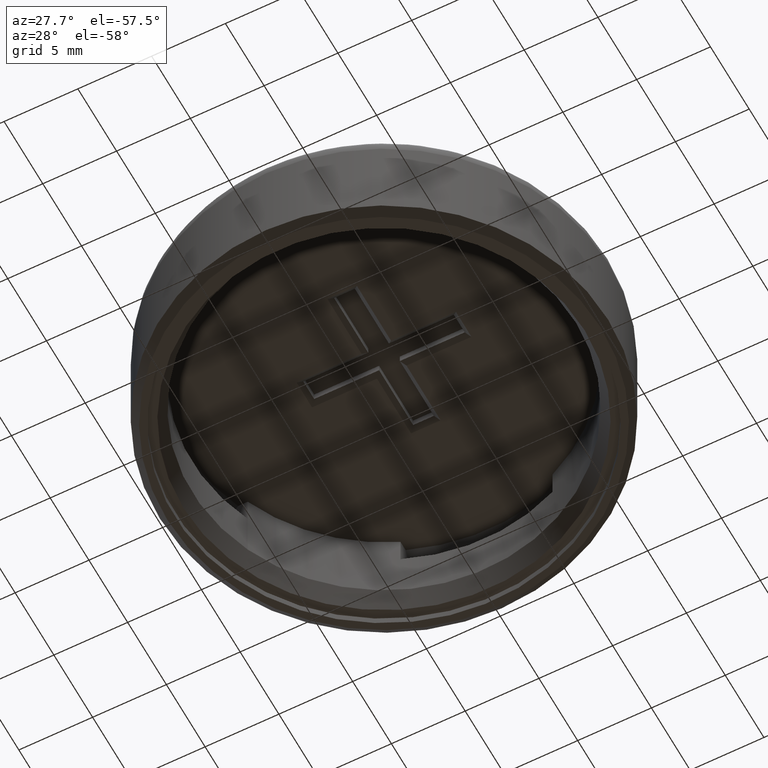
[diagram: clean part render]
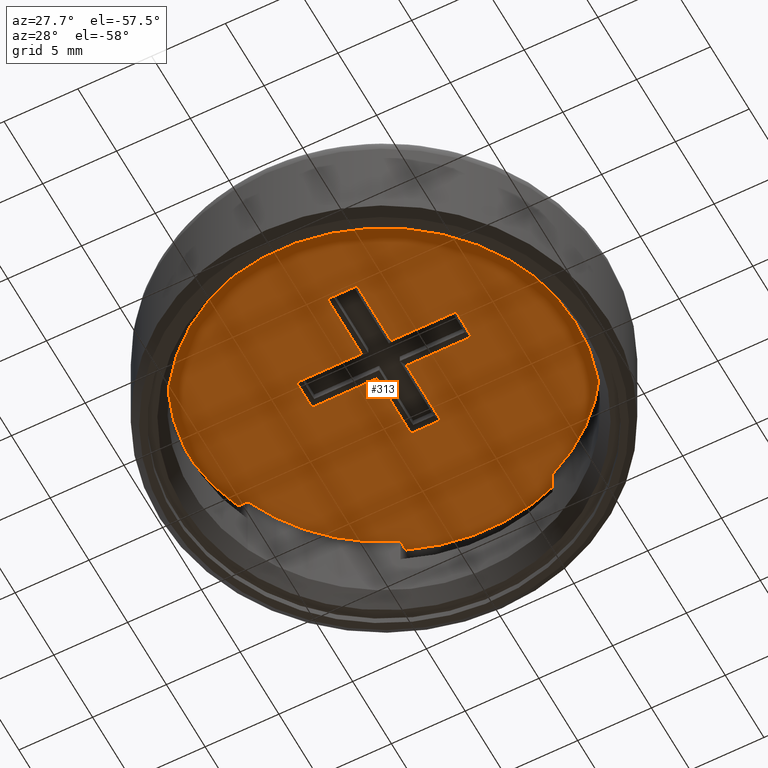
[diagram: same view with one face highlighted and labeled with its STEP entity id]
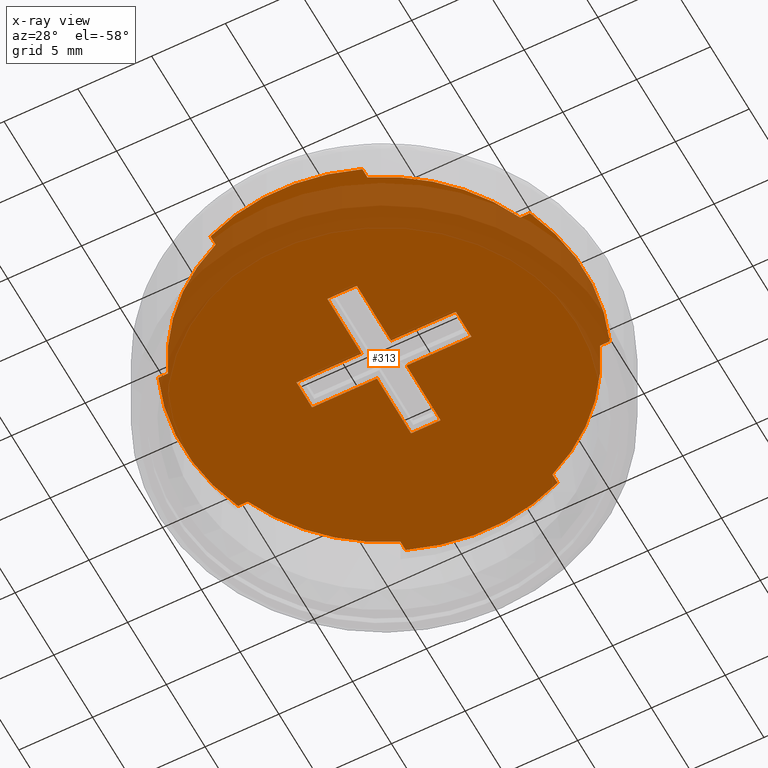
[diagram: x-ray of the same camera — body ghosted, the highlighted face saturated]
A machine part, auxiliary view. The second image highlights one B-rep face of the part: STEP entity #313.
The next image is the same camera in x-ray: the body ghosted, the highlighted face saturated — about 18% of this face is hidden behind the body in this view.
In plain terms, the highlighted planar face has unit normal (0, 0, -1).
Its self-contained STEP definition (entity closure, byte-faithful):
#52=PLANE('',#1013);
#95=FACE_BOUND('',#426,.T.);
#96=FACE_BOUND('',#427,.T.);
#115=LINE('',#1402,#207);
#119=LINE('',#1411,#211);
#122=LINE('',#1417,#214);
#124=LINE('',#1421,#216);
#128=LINE('',#1429,#220);
#131=LINE('',#1435,#223);
#133=LINE('',#1439,#225);
#137=LINE('',#1447,#229);
#140=LINE('',#1453,#232);
#142=LINE('',#1457,#234);
#146=LINE('',#1464,#238);
#147=LINE('',#1466,#239);
#162=LINE('',#1495,#254);
#163=LINE('',#1496,#255);
#164=LINE('',#1500,#256);
#165=LINE('',#1501,#257);
#166=LINE('',#1502,#258);
#167=LINE('',#1503,#259);
#168=LINE('',#1507,#260);
#169=LINE('',#1508,#261);
#207=VECTOR('',#1124,1.);
#211=VECTOR('',#1130,1.);
#214=VECTOR('',#1135,1.);
#216=VECTOR('',#1139,1.);
#220=VECTOR('',#1145,1.);
#223=VECTOR('',#1150,1.);
#225=VECTOR('',#1154,1.);
#229=VECTOR('',#1160,1.);
#232=VECTOR('',#1165,1.);
#234=VECTOR('',#1169,1.);
#238=VECTOR('',#1175,1.);
#239=VECTOR('',#1178,1.);
#254=VECTOR('',#1207,1.);
#255=VECTOR('',#1208,1.);
#256=VECTOR('',#1211,1.);
#257=VECTOR('',#1212,1.);
#258=VECTOR('',#1213,1.);
#259=VECTOR('',#1214,1.);
#260=VECTOR('',#1217,1.);
#261=VECTOR('',#1218,1.);
#313=ADVANCED_FACE('',(#95,#96),#52,.T.);
#426=EDGE_LOOP('',(#579,#580,#581,#582,#583,#584,#585,#586,#587,#588,#589,
#590,#591,#592,#593,#594));
#427=EDGE_LOOP('',(#595,#596,#597,#598,#599,#600,#601,#602,#603,#604,#605,
#606));
#579=ORIENTED_EDGE('',*,*,#891,.T.);
#580=ORIENTED_EDGE('',*,*,#822,.T.);
#581=ORIENTED_EDGE('',*,*,#892,.T.);
#582=ORIENTED_EDGE('',*,*,#893,.T.);
#583=ORIENTED_EDGE('',*,*,#894,.T.);
#584=ORIENTED_EDGE('',*,*,#818,.T.);
#585=ORIENTED_EDGE('',*,*,#895,.T.);
#586=ORIENTED_EDGE('',*,*,#834,.T.);
#587=ORIENTED_EDGE('',*,*,#896,.T.);
#588=ORIENTED_EDGE('',*,*,#814,.T.);
#589=ORIENTED_EDGE('',*,*,#897,.T.);
#590=ORIENTED_EDGE('',*,*,#898,.T.);
#591=ORIENTED_EDGE('',*,*,#899,.T.);
#592=ORIENTED_EDGE('',*,*,#810,.T.);
#593=ORIENTED_EDGE('',*,*,#900,.T.);
#594=ORIENTED_EDGE('',*,*,#804,.T.);
#595=ORIENTED_EDGE('',*,*,#848,.F.);
#596=ORIENTED_EDGE('',*,*,#875,.F.);
#597=ORIENTED_EDGE('',*,*,#871,.F.);
#598=ORIENTED_EDGE('',*,*,#869,.F.);
#599=ORIENTED_EDGE('',*,*,#866,.F.);
#600=ORIENTED_EDGE('',*,*,#862,.F.);
#601=ORIENTED_EDGE('',*,*,#860,.F.);
#602=ORIENTED_EDGE('',*,*,#857,.F.);
#603=ORIENTED_EDGE('',*,*,#853,.F.);
#604=ORIENTED_EDGE('',*,*,#851,.F.);
#605=ORIENTED_EDGE('',*,*,#844,.F.);
#606=ORIENTED_EDGE('',*,*,#876,.F.);
#720=VERTEX_POINT('',#1306);
#721=VERTEX_POINT('',#1307);
#726=VERTEX_POINT('',#1322);
#727=VERTEX_POINT('',#1324);
#730=VERTEX_POINT('',#1330);
#731=VERTEX_POINT('',#1332);
#734=VERTEX_POINT('',#1338);
#735=VERTEX_POINT('',#1340);
#738=VERTEX_POINT('',#1346);
#739=VERTEX_POINT('',#1348);
#750=VERTEX_POINT('',#1378);
#751=VERTEX_POINT('',#1380);
#758=VERTEX_POINT('',#1401);
#759=VERTEX_POINT('',#1403);
#762=VERTEX_POINT('',#1410);
#763=VERTEX_POINT('',#1412);
#765=VERTEX_POINT('',#1418);
#766=VERTEX_POINT('',#1422);
#769=VERTEX_POINT('',#1430);
#771=VERTEX_POINT('',#1436);
#772=VERTEX_POINT('',#1440);
#775=VERTEX_POINT('',#1448);
#777=VERTEX_POINT('',#1454);
#778=VERTEX_POINT('',#1458);
#787=VERTEX_POINT('',#1497);
#788=VERTEX_POINT('',#1499);
#789=VERTEX_POINT('',#1504);
#790=VERTEX_POINT('',#1506);
#804=EDGE_CURVE('',#720,#721,#932,.T.);
#810=EDGE_CURVE('',#727,#726,#935,.T.);
#814=EDGE_CURVE('',#731,#730,#937,.T.);
#818=EDGE_CURVE('',#735,#734,#939,.T.);
#822=EDGE_CURVE('',#739,#738,#941,.T.);
#834=EDGE_CURVE('',#751,#750,#951,.T.);
#844=EDGE_CURVE('',#758,#759,#115,.T.);
#848=EDGE_CURVE('',#762,#763,#119,.T.);
#851=EDGE_CURVE('',#759,#765,#122,.T.);
#853=EDGE_CURVE('',#765,#766,#124,.T.);
#857=EDGE_CURVE('',#766,#769,#128,.T.);
#860=EDGE_CURVE('',#769,#771,#131,.T.);
#862=EDGE_CURVE('',#771,#772,#133,.T.);
#866=EDGE_CURVE('',#772,#775,#137,.T.);
#869=EDGE_CURVE('',#775,#777,#140,.T.);
#871=EDGE_CURVE('',#777,#778,#142,.T.);
#875=EDGE_CURVE('',#778,#762,#146,.T.);
#876=EDGE_CURVE('',#763,#758,#147,.T.);
#891=EDGE_CURVE('',#721,#739,#162,.T.);
#892=EDGE_CURVE('',#738,#787,#163,.T.);
#893=EDGE_CURVE('',#787,#788,#954,.T.);
#894=EDGE_CURVE('',#788,#735,#164,.T.);
#895=EDGE_CURVE('',#734,#751,#165,.T.);
#896=EDGE_CURVE('',#750,#731,#166,.T.);
#897=EDGE_CURVE('',#730,#789,#167,.T.);
#898=EDGE_CURVE('',#789,#790,#955,.T.);
#899=EDGE_CURVE('',#790,#727,#168,.T.);
#900=EDGE_CURVE('',#726,#720,#169,.T.);
#932=CIRCLE('',#961,13.6107459191138);
#935=CIRCLE('',#965,13.);
#937=CIRCLE('',#967,13.);
#939=CIRCLE('',#969,13.);
#941=CIRCLE('',#971,13.);
#951=CIRCLE('',#987,13.6107459191138);
#954=CIRCLE('',#1011,13.6107459191138);
#955=CIRCLE('',#1012,13.6107459191138);
#961=AXIS2_PLACEMENT_3D('',#1305,#1046,#1047);
#965=AXIS2_PLACEMENT_3D('',#1323,#1055,#1056);
#967=AXIS2_PLACEMENT_3D('',#1331,#1061,#1062);
#969=AXIS2_PLACEMENT_3D('',#1339,#1067,#1068);
#971=AXIS2_PLACEMENT_3D('',#1347,#1073,#1074);
#987=AXIS2_PLACEMENT_3D('',#1379,#1106,#1107);
#1011=AXIS2_PLACEMENT_3D('',#1498,#1209,#1210);
#1012=AXIS2_PLACEMENT_3D('',#1505,#1215,#1216);
#1013=AXIS2_PLACEMENT_3D('',#1509,#1219,#1220);
#1046=DIRECTION('',(0.,0.,-1.));
#1047=DIRECTION('',(1.,0.,0.));
#1055=DIRECTION('',(0.,0.,-1.));
#1056=DIRECTION('',(1.,0.,0.));
#1061=DIRECTION('',(0.,0.,-1.));
#1062=DIRECTION('',(1.,0.,0.));
#1067=DIRECTION('',(0.,0.,-1.));
#1068=DIRECTION('',(1.,0.,0.));
#1073=DIRECTION('',(0.,0.,-1.));
#1074=DIRECTION('',(1.,0.,0.));
#1106=DIRECTION('',(0.,0.,-1.));
#1107=DIRECTION('',(1.,0.,0.));
#1124=DIRECTION('',(1.,1.378453E-012,5.018208E-014));
#1130=DIRECTION('',(1.,1.931283E-013,5.006097E-014));
#1135=DIRECTION('',(-1.848774E-013,-1.,5.046468E-016));
#1139=DIRECTION('',(1.,2.924681E-013,5.006097E-014));
#1145=DIRECTION('',(7.434053E-013,-1.,6.661338E-016));
#1150=DIRECTION('',(-1.,1.847007E-013,-5.016189E-014));
#1154=DIRECTION('',(2.926447E-013,-1.,4.037175E-016));
#1160=DIRECTION('',(-1.,-7.385204E-013,-5.018208E-014));
#1165=DIRECTION('',(0.,1.,0.));
#1169=DIRECTION('',(-1.,0.,0.));
#1175=DIRECTION('',(0.,1.,0.));
#1178=DIRECTION('',(0.,1.,0.));
#1207=DIRECTION('',(1.,-4.545398E-013,5.879519E-013));
#1208=DIRECTION('',(-1.474908E-013,1.,-5.376709E-013));
#1209=DIRECTION('',(0.,0.,-1.));
#1210=DIRECTION('',(1.,0.,0.));
#1211=DIRECTION('',(-1.179926E-013,-1.,5.383414E-013));
#1212=DIRECTION('',(1.,1.729665E-013,-4.860492E-013));
#1213=DIRECTION('',(-1.,-1.649215E-013,4.867196E-013));
#1214=DIRECTION('',(2.426894E-013,-1.,-5.363301E-013));
#1215=DIRECTION('',(0.,0.,-1.));
#1216=DIRECTION('',(1.,0.,0.));
#1217=DIRECTION('',(1.582174E-013,1.,5.363301E-013));
#1218=DIRECTION('',(-1.,1.649215E-013,-5.879519E-013));
#1219=DIRECTION('',(0.,0.,-1.));
#1220=DIRECTION('',(0.,-1.,0.));
#1305=CARTESIAN_POINT('',(-1.107047326E-011,1.03069176674968E-013,196.791983416322));
#1306=CARTESIAN_POINT('',(-12.5988056765292,-5.15000000000058,196.791983416321));
#1307=CARTESIAN_POINT('',(-12.5988056765298,5.14999999999935,196.791983416321));
#1322=CARTESIAN_POINT('',(-11.9363939278266,-5.15000000000069,196.791983416322));
#1323=CARTESIAN_POINT('',(-1.106786733E-011,1.02677608674968E-013,196.791983416322));
#1324=CARTESIAN_POINT('',(-5.15000000001077,-11.9363939278159,196.791983416322));
#1330=CARTESIAN_POINT('',(5.14999999998937,-11.9363939278156,196.791983416322));
#1331=CARTESIAN_POINT('',(-1.106786733E-011,1.02677608674968E-013,196.791983416322));
#1332=CARTESIAN_POINT('',(11.9363939278045,-5.15000000000069,196.791983416323));
#1338=CARTESIAN_POINT('',(11.9363939278051,5.14999999999938,196.791983416323));
#1339=CARTESIAN_POINT('',(-1.106786733E-011,1.02677608674968E-013,196.791983416322));
#1340=CARTESIAN_POINT('',(5.14999999998937,11.9363939278158,196.791983416322));
#1346=CARTESIAN_POINT('',(-5.15000000001077,11.9363939278161,196.791983416322));
#1347=CARTESIAN_POINT('',(-1.106786733E-011,1.02677608674968E-013,196.791983416322));
#1348=CARTESIAN_POINT('',(-11.9363939278274,5.14999999999905,196.791983416322));
#1378=CARTESIAN_POINT('',(12.5988056765071,-5.15000000000058,196.791983416322));
#1379=CARTESIAN_POINT('',(-1.107047326E-011,1.03069176674968E-013,196.791983416322));
#1380=CARTESIAN_POINT('',(12.5988056765076,5.14999999999949,196.791983416322));
#1401=CARTESIAN_POINT('',(-1.0000000000116,5.39999999999835,196.791983416322));
#1402=CARTESIAN_POINT('',(-1.0000000000116,5.39999999999835,196.791983416322));
#1403=CARTESIAN_POINT('',(0.999999999988137,5.40000000000111,196.791983416322));
#1410=CARTESIAN_POINT('',(-5.4000000000112,0.999999999998548,196.791983416322));
#1411=CARTESIAN_POINT('',(-5.4000000000112,0.999999999998548,196.791983416322));
#1412=CARTESIAN_POINT('',(-1.00000000001127,0.999999999999398,196.791983416322));
#1417=CARTESIAN_POINT('',(0.999999999988137,5.40000000000111,196.791983416322));
#1418=CARTESIAN_POINT('',(0.999999999987323,1.00000000000003,196.791983416322));
#1421=CARTESIAN_POINT('',(0.999999999987323,1.00000000000003,196.791983416322));
#1422=CARTESIAN_POINT('',(5.39999999998876,1.00000000000132,196.791983416322));
#1429=CARTESIAN_POINT('',(5.39999999998876,1.00000000000132,196.791983416322));
#1430=CARTESIAN_POINT('',(5.39999999999025,-0.999999999999528,196.791983416322));
#1435=CARTESIAN_POINT('',(5.39999999999025,-0.999999999999528,196.791983416322));
#1436=CARTESIAN_POINT('',(0.999999999988774,-0.999999999998717,196.791983416322));
#1439=CARTESIAN_POINT('',(0.999999999988774,-0.999999999998717,196.791983416322));
#1440=CARTESIAN_POINT('',(0.999999999990061,-5.40000000000017,196.791983416322));
#1447=CARTESIAN_POINT('',(0.999999999990061,-5.40000000000017,196.791983416322));
#1448=CARTESIAN_POINT('',(-1.00000000001079,-5.40000000000165,196.791983416322));
#1453=CARTESIAN_POINT('',(-1.00000000001079,-5.40000000000165,196.791983416322));
#1454=CARTESIAN_POINT('',(-1.00000000001079,-1.00000000000016,196.791983416322));
#1457=CARTESIAN_POINT('',(-1.00000000001079,-1.00000000000016,196.791983416322));
#1458=CARTESIAN_POINT('',(-5.40000000001105,-1.0000000000006,196.791983416322));
#1464=CARTESIAN_POINT('',(-5.40000000001105,-1.0000000000006,196.791983416322));
#1466=CARTESIAN_POINT('',(-1.00000000001127,0.999999999999398,196.791983416322));
#1495=CARTESIAN_POINT('',(-12.5988056765298,5.14999999999935,196.791983416321));
#1496=CARTESIAN_POINT('',(-5.15000000001077,11.9363939278161,196.791983416322));
#1497=CARTESIAN_POINT('',(-5.15000000001087,12.5988056765186,196.791983416322));
#1498=CARTESIAN_POINT('',(-1.107047326E-011,1.03069176674968E-013,196.791983416322));
#1499=CARTESIAN_POINT('',(5.14999999998944,12.5988056765183,196.791983416322));
#1500=CARTESIAN_POINT('',(5.14999999998944,12.5988056765183,196.791983416322));
#1501=CARTESIAN_POINT('',(11.9363939278051,5.14999999999938,196.791983416323));
#1502=CARTESIAN_POINT('',(12.5988056765071,-5.15000000000058,196.791983416322));
#1503=CARTESIAN_POINT('',(5.14999999998937,-11.9363939278156,196.791983416322));
#1504=CARTESIAN_POINT('',(5.14999999998953,-12.5988056765181,196.791983416322));
#1505=CARTESIAN_POINT('',(-1.107047326E-011,1.03069176674968E-013,196.791983416322));
#1506=CARTESIAN_POINT('',(-5.15000000001087,-12.5988056765184,196.791983416322));
#1507=CARTESIAN_POINT('',(-5.15000000001087,-12.5988056765184,196.791983416322));
#1508=CARTESIAN_POINT('',(-11.9363939278266,-5.15000000000069,196.791983416322));
#1509=CARTESIAN_POINT('',(6.80537295954582,1.03069176674968E-013,196.791983416323));